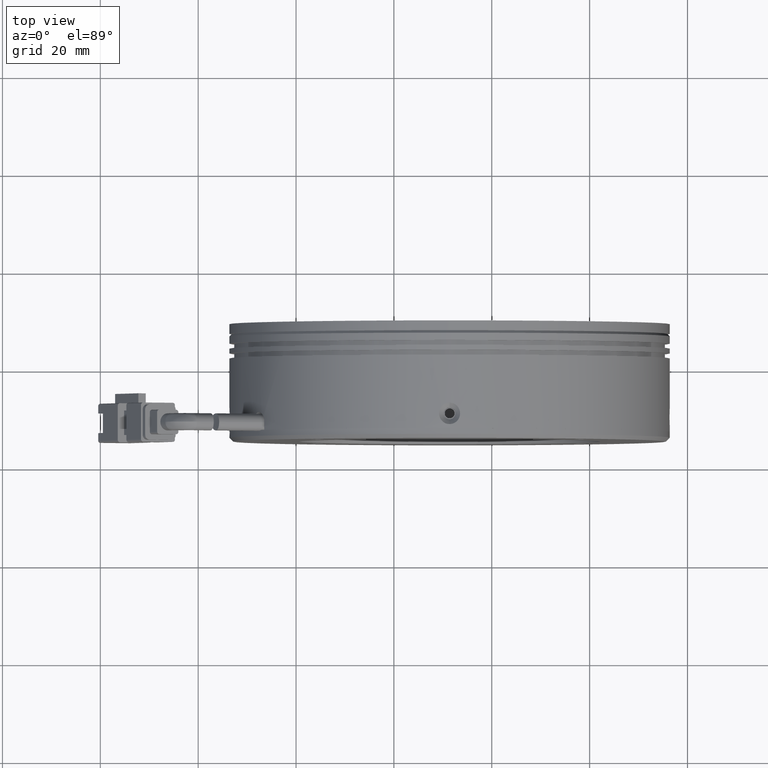
[diagram: clean part render]
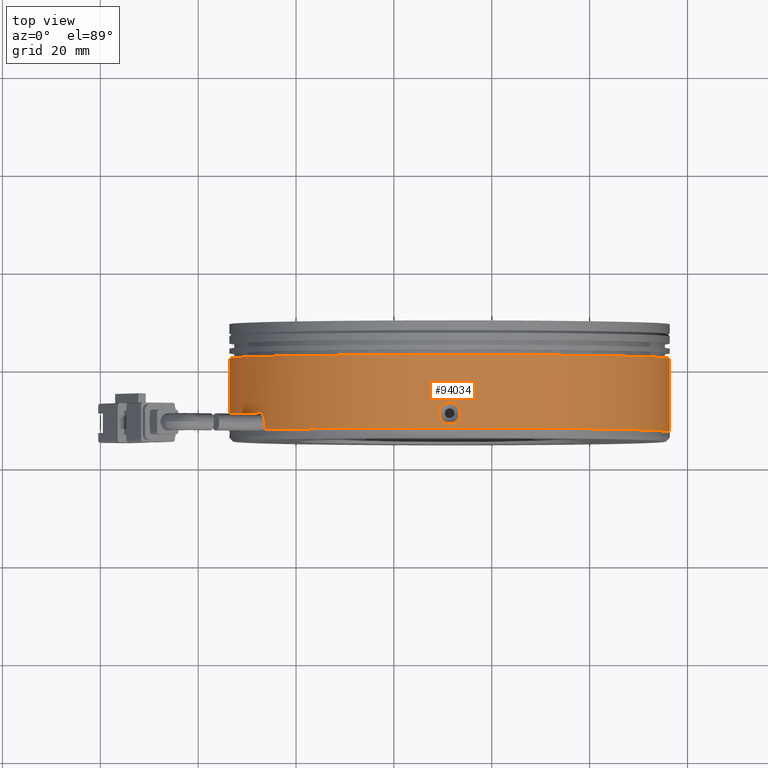
[diagram: same view with one face highlighted and labeled with its STEP entity id]
A machine part, top view. The second image highlights one B-rep face of the part: STEP entity #94034.
In plain terms, the highlighted cylindrical surface (partial cylindrical patch) has radius 45 mm, axis along (-0, 1, -0).
Its self-contained STEP definition (entity closure, byte-faithful):
#180 = CARTESIAN_POINT ( 'NONE',  ( -47.52586555121216300, 10.63076739277105400, 22.61883418976041700 ) ) ;
#323 = CARTESIAN_POINT ( 'NONE',  ( -53.62332752538289800, 7.773604335542724900, 0.1436688072208375800 ) ) ;
#595 = CARTESIAN_POINT ( 'NONE',  ( -46.52342250766837100, 9.074975093179070000, 24.26074119547914200 ) ) ;
#1868 = B_SPLINE_CURVE_WITH_KNOTS ( 'NONE', 3,
 ( #57676, #115708, #47952, #67444, #9419, #77114, #19250, #86794, #28998, #96580, #38647, #106371, #48366, #116125, #58063, #180, #67851, #9838, #77532, #19662, #87230, #29399, #96991, #39091, #106787, #48764, #116545, #58484, #595, #68273, #10266, #77938 ),
 .UNSPECIFIED., .F., .F.,
 ( 4, 2, 2, 2, 2, 2, 2, 2, 2, 2, 2, 2, 2, 2, 2, 4 ),
 ( 0.0000000000000000000, 0.0004141680494184936300, 0.0008283360988369872500, 0.001242504148255481000, 0.001656672197673974500, 0.002485008296510955000, 0.002899176345929454200, 0.003313344395347952900, 0.003727512444766451600, 0.004141680494184949900, 0.004555848543603449100, 0.004970016593021947400, 0.005384184642440447400, 0.005798352691858945700, 0.006212520741277444800, 0.006626688790695944000 ),
 .UNSPECIFIED. ) ;
#2113 = EDGE_CURVE ( 'NONE', #23534, #94598, #1868, .T. ) ;
#4279 = CARTESIAN_POINT ( 'NONE',  ( -8.059972934870741000, 12.10157494673396400, 44.99668873229931200 ) ) ;
#4303 = LINE ( 'NONE', #124534, #78423 ) ;
#4701 = CARTESIAN_POINT ( 'NONE',  ( -6.488352816655626600, 9.687964956977522100, 44.94933370211461500 ) ) ;
#5116 = CARTESIAN_POINT ( 'NONE',  ( -8.623327525382890700, 7.773604335542718700, 45.00000000000002100 ) ) ;
#5336 = CARTESIAN_POINT ( 'NONE',  ( 36.36371159320830800, 8.070075960840535200, 1.086324794343598700 ) ) ;
#5361 = CARTESIAN_POINT ( 'NONE',  ( -10.66445190200398100, 9.271885728209467100, 44.95371608337225000 ) ) ;
#5514 = CARTESIAN_POINT ( 'NONE',  ( -53.62332752538289800, 12.17360433553508700, 1.057097118173366800E-014 ) ) ;
#5766 = CARTESIAN_POINT ( 'NONE',  ( 36.33740140739007500, 11.07197063129076200, 1.882588811334083400 ) ) ;
#5794 = CARTESIAN_POINT ( 'NONE',  ( -9.585738901869113700, 11.94582116073213000, 44.98989713312852200 ) ) ;
#7671 = AXIS2_PLACEMENT_3D ( 'NONE', #115258, #57222, #124966 ) ;
#8440 = ORIENTED_EDGE ( 'NONE', *, *, #11055, .T. ) ;
#9159 = CARTESIAN_POINT ( 'NONE',  ( -53.61804927995928700, 12.05805315233403100, 0.7014563437106221500 ) ) ;
#9419 = CARTESIAN_POINT ( 'NONE',  ( -48.56507701671903700, 9.206578055496351000, 20.72823082719210700 ) ) ;
#9556 = CARTESIAN_POINT ( 'NONE',  ( -53.57517065982484900, 9.409703381289848100, 2.081469694106937500 ) ) ;
#9838 = CARTESIAN_POINT ( 'NONE',  ( -47.31719121714096600, 10.56405916631438700, 22.97397095435851700 ) ) ;
#10266 = CARTESIAN_POINT ( 'NONE',  ( -46.48588377028195100, 8.663585723335847500, 24.31926879250013600 ) ) ;
#10872 = FACE_BOUND ( 'NONE', #68489, .T. ) ;
#11055 = EDGE_CURVE ( 'NONE', #88007, #62998, #98500, .T. ) ;
#11061 = EDGE_CURVE ( 'NONE', #73994, #23534, #50077, .T. ) ;
#12731 = ORIENTED_EDGE ( 'NONE', *, *, #117310, .F. ) ;
#13977 = CARTESIAN_POINT ( 'NONE',  ( -7.660942420719791800, 11.94581845698619900, 44.98989710684172400 ) ) ;
#14223 = DIRECTION ( 'NONE',  ( -0.0000000000000000000, 1.000000000000000000, -0.0000000000000000000 ) ) ;
#14396 = CARTESIAN_POINT ( 'NONE',  ( -6.581535391594491600, 9.273676331088394100, 44.95368624019742000 ) ) ;
#14677 = CARTESIAN_POINT ( 'NONE',  ( -8.623327525382890700, 7.773604335542718700, 45.00000000000002100 ) ) ;
#15084 = CARTESIAN_POINT ( 'NONE',  ( 36.35403948381718200, 8.325926676454987100, 1.430432306789554600 ) ) ;
#15122 = CARTESIAN_POINT ( 'NONE',  ( -10.75857652733541900, 9.689885123036090100, 44.94932067194307000 ) ) ;
#15521 = CARTESIAN_POINT ( 'NONE',  ( 36.35407420739181800, 11.62234135784011500, 1.429410993699714600 ) ) ;
#15547 = CARTESIAN_POINT ( 'NONE',  ( -9.189443125921636500, 12.10081905160010000, 44.99665452443410600 ) ) ;
#17107 = CARTESIAN_POINT ( 'NONE',  ( -46.48588187067174700, 8.523604335538902200, 24.31927174999383500 ) ) ;
#18164 = ORIENTED_EDGE ( 'NONE', *, *, #87028, .T. ) ;
#18515 = CARTESIAN_POINT ( 'NONE',  ( -48.61571183505931500, 6.973604335538903200, 20.63029804019194900 ) ) ;
#18647 = VECTOR ( 'NONE', #14223, 1000.000000000000000 ) ;
#18959 = CARTESIAN_POINT ( 'NONE',  ( -53.61036664397417400, 11.87713271022997600, 1.086324794339401200 ) ) ;
#19250 = CARTESIAN_POINT ( 'NONE',  ( -48.48477387686834600, 9.583414573400855100, 20.88231702103256600 ) ) ;
#19390 = CARTESIAN_POINT ( 'NONE',  ( -53.58405645815616200, 8.875238039791101500, 1.882588811326614700 ) ) ;
#19662 = CARTESIAN_POINT ( 'NONE',  ( -47.11680841943959300, 10.42001503343518500, 23.30812067857121800 ) ) ;
#21667 = LINE ( 'NONE', #81884, #18647 ) ;
#22393 = B_SPLINE_CURVE_WITH_KNOTS ( 'NONE', 3,
 ( #42828, #81224, #62200, #4279, #71939, #13977, #81635, #23741, #91376, #33468, #101159, #43233, #110897, #52899, #120647, #62600, #4701, #72349, #14396, #82057, #24176, #91811, #33867, #101585, #43649, #111315, #53307, #121053, #63031, #5116 ),
 .UNSPECIFIED., .F., .F.,
 ( 4, 2, 2, 2, 2, 2, 2, 2, 2, 2, 2, 2, 2, 2, 4 ),
 ( 1.734723475976807100E-018, 0.0004257861064160340200, 0.0008515722128320663000, 0.001277358319248103400, 0.001703144425664140400, 0.002554716638496214900, 0.002980502744912249400, 0.003406288851328284300, 0.003832074957744318700, 0.004257861064160353200, 0.005109433276992423000, 0.005535219383408456100, 0.005961005489824489300, 0.006386791596240522400, 0.006812577702656554700 ),
 .UNSPECIFIED. ) ;
#23251 = VECTOR ( 'NONE', #50633, 1000.000000000000000 ) ;
#23534 = VERTEX_POINT ( 'NONE', #123644 ) ;
#23741 = CARTESIAN_POINT ( 'NONE',  ( -7.302223266193768900, 11.71451360040025400, 44.98075670498234000 ) ) ;
#24176 = CARTESIAN_POINT ( 'NONE',  ( -6.895857590895169600, 8.633905795971617900, 44.96727006731342200 ) ) ;
#24430 = CARTESIAN_POINT ( 'NONE',  ( -8.908376203405433500, 7.788219238862238200, 44.99931235604873300 ) ) ;
#24821 = CARTESIAN_POINT ( 'NONE',  ( 36.33737612640379000, 8.876873529306786600, 1.883146525718196300 ) ) ;
#24847 = CARTESIAN_POINT ( 'NONE',  ( -10.77202962060910900, 10.11544503738457700, 44.94867160781087300 ) ) ;
#25241 = CARTESIAN_POINT ( 'NONE',  ( 36.36364927896218500, 11.87556304089177800, 1.088790388727696800 ) ) ;
#25265 = CARTESIAN_POINT ( 'NONE',  ( -8.766996332603804700, 12.17360433553509400, 45.00000000000002800 ) ) ;
#28297 = CARTESIAN_POINT ( 'NONE',  ( -53.62332752538289800, 12.17360433553508700, 1.057097118173366800E-014 ) ) ;
#28718 = CARTESIAN_POINT ( 'NONE',  ( -53.60069453458314800, 11.62128199461645800, 1.430432306784017700 ) ) ;
#28998 = CARTESIAN_POINT ( 'NONE',  ( -48.37000347632785200, 9.920932722011510700, 21.10003437994229400 ) ) ;
#29134 = CARTESIAN_POINT ( 'NONE',  ( -53.60072925815778400, 8.324867313243848000, 1.429410993693936800 ) ) ;
#29399 = CARTESIAN_POINT ( 'NONE',  ( -46.93173925730071300, 10.20317269934878000, 23.61099089993897600 ) ) ;
#29404 = VERTEX_POINT ( 'NONE', #99585 ) ;
#29577 = ORIENTED_EDGE ( 'NONE', *, *, #97978, .F. ) ;
#29695 = CIRCLE ( 'NONE', #96402, 45.00000000000000700 ) ;
#30267 = ORIENTED_EDGE ( 'NONE', *, *, #45635, .T. ) ;
#33260 = VERTEX_POINT ( 'NONE', #49297 ) ;
#33468 = CARTESIAN_POINT ( 'NONE',  ( -6.897909732337798700, 11.31543146729494400, 44.96733983790665700 ) ) ;
#33799 = VERTEX_POINT ( 'NONE', #100643 ) ;
#33867 = CARTESIAN_POINT ( 'NONE',  ( -7.301841717478401600, 8.233099164097236400, 44.98074278805070500 ) ) ;
#34092 = CARTESIAN_POINT ( 'NONE',  ( 36.37667247461712300, 7.773604335534483500, 0.1436756704062735200 ) ) ;
#34119 = CARTESIAN_POINT ( 'NONE',  ( -9.324783869093527900, 7.889155518743739200, 44.99472175457638900 ) ) ;
#34499 = CARTESIAN_POINT ( 'NONE',  ( 36.32850273013742300, 9.410661051312031200, 2.081747786931598100 ) ) ;
#34531 = CARTESIAN_POINT ( 'NONE',  ( -10.70479721948997200, 10.53750528978793900, 44.95184313444195100 ) ) ;
#34905 = CARTESIAN_POINT ( 'NONE',  ( 36.37140072468191900, 12.05820216036170000, 0.7010773209099314700 ) ) ;
#34959 = CARTESIAN_POINT ( 'NONE',  ( -46.48588187067174700, 6.973604335538903200, 24.31927174999383800 ) ) ;
#35458 = DIRECTION ( 'NONE',  ( 0.0000000000000000000, -1.000000000000000000, 0.0000000000000000000 ) ) ;
#38279 = CARTESIAN_POINT ( 'NONE',  ( -8.623327525382890700, 6.973604335538903200, 1.057097118173366800E-014 ) ) ;
#38366 = CARTESIAN_POINT ( 'NONE',  ( -53.58403117716987700, 11.07033514176670200, 1.883146525710874600 ) ) ;
#38647 = CARTESIAN_POINT ( 'NONE',  ( -48.11778569940004500, 10.36742906659814500, 21.56972644323996100 ) ) ;
#38790 = CARTESIAN_POINT ( 'NONE',  ( -53.61030432972807300, 8.071645630193149400, 1.088790388723212200 ) ) ;
#39091 = CARTESIAN_POINT ( 'NONE',  ( -46.76948939058715400, 9.920386518002432700, 23.87216586767282300 ) ) ;
#41007 = CARTESIAN_POINT ( 'NONE',  ( -53.62332752538289800, 6.973604335538903200, 1.057097118173366800E-014 ) ) ;
#41485 = ORIENTED_EDGE ( 'NONE', *, *, #54436, .T. ) ;
#42828 = CARTESIAN_POINT ( 'NONE',  ( -8.623327525382890700, 12.17360433553508700, 45.00000000000002100 ) ) ;
#43233 = CARTESIAN_POINT ( 'NONE',  ( -6.582203148761800000, 10.67532294286833800, 44.95371608337226400 ) ) ;
#43649 = CARTESIAN_POINT ( 'NONE',  ( -7.660916148896670400, 8.001387510345676200, 44.98989713312852200 ) ) ;
#43914 = CARTESIAN_POINT ( 'NONE',  ( -9.709652319722332300, 8.070075960847768600, 44.98703911859131200 ) ) ;
#44312 = CARTESIAN_POINT ( 'NONE',  ( 36.32534686873297900, 9.830841455634853800, 2.148643807755291800 ) ) ;
#44336 = CARTESIAN_POINT ( 'NONE',  ( -10.50591633670963700, 11.07197063128670100, 44.96072893277325700 ) ) ;
#44714 = CARTESIAN_POINT ( 'NONE',  ( 36.37596953617409000, 12.15866189919627200, 0.2875225733698058600 ) ) ;
#44763 = VERTEX_POINT ( 'NONE', #5514 ) ;
#45635 = EDGE_CURVE ( 'NONE', #33260, #73994, #29695, .T. ) ;
#46776 = LINE ( 'NONE', #83257, #95148 ) ;
#47045 = ORIENTED_EDGE ( 'NONE', *, *, #11061, .T. ) ;
#47952 = CARTESIAN_POINT ( 'NONE',  ( -48.60931051439907700, 8.801220067653474600, 20.64272061329033600 ) ) ;
#48009 = DIRECTION ( 'NONE',  ( -1.000000000000000000, 0.0000000000000000000, 0.0000000000000000000 ) ) ;
#48105 = CARTESIAN_POINT ( 'NONE',  ( -53.57515778090357400, 10.53654761976347800, 2.081747786923475300 ) ) ;
#48366 = CARTESIAN_POINT ( 'NONE',  ( -47.86656886007198600, 10.56397073976971700, 22.02241199526636000 ) ) ;
#48500 = CARTESIAN_POINT ( 'NONE',  ( -53.61805577544774300, 7.889006510723914900, 0.7010773209069224300 ) ) ;
#48764 = CARTESIAN_POINT ( 'NONE',  ( -46.63952893542357000, 9.586064993795025300, 24.07850619191232500 ) ) ;
#48859 = LINE ( 'NONE', #85927, #123101 ) ;
#48935 = CARTESIAN_POINT ( 'NONE',  ( -53.62332752538289800, 21.97360433553890100, 1.057097118173366800E-014 ) ) ;
#49200 = VERTEX_POINT ( 'NONE', #112408 ) ;
#49297 = CARTESIAN_POINT ( 'NONE',  ( -53.62332752538289800, 6.973604335538903200, 1.057097118173366800E-014 ) ) ;
#50077 = LINE ( 'NONE', #55163, #95483 ) ;
#50498 = ORIENTED_EDGE ( 'NONE', *, *, #84651, .T. ) ;
#50633 = DIRECTION ( 'NONE',  ( -0.0000000000000000000, 1.000000000000000000, -0.0000000000000000000 ) ) ;
#52624 = ORIENTED_EDGE ( 'NONE', *, *, #102595, .T. ) ;
#52899 = CARTESIAN_POINT ( 'NONE',  ( -6.488078523430362800, 10.25732354804171600, 44.94932067194307000 ) ) ;
#53307 = CARTESIAN_POINT ( 'NONE',  ( -8.057211924844139600, 7.846389619477705900, 44.99665452443411300 ) ) ;
#53527 = CARTESIAN_POINT ( 'NONE',  ( 36.37336120691640000, 7.845633724335820100, 0.5633545905143042500 ) ) ;
#53558 = CARTESIAN_POINT ( 'NONE',  ( -10.05375983216697100, 8.325926676461287800, 44.97736700920025800 ) ) ;
#53949 = CARTESIAN_POINT ( 'NONE',  ( 36.32600617673132600, 10.25924371410124900, 2.134974708735501100 ) ) ;
#53980 = CARTESIAN_POINT ( 'NONE',  ( -10.05273851907695200, 11.62234135783396900, 44.97740173277488700 ) ) ;
#54372 = CARTESIAN_POINT ( 'NONE',  ( 36.37667247461711600, 12.17360433554327100, 2.489116094179469700E-013 ) ) ;
#54436 = EDGE_CURVE ( 'NONE', #29404, #33799, #21667, .T. ) ;
#54868 = CARTESIAN_POINT ( 'NONE',  ( -8.623327525382890700, 7.773604335542718700, 45.00000000000002100 ) ) ;
#55163 = CARTESIAN_POINT ( 'NONE',  ( -48.61571183505932200, 6.973604335538903200, 20.63029804019194900 ) ) ;
#55581 = CARTESIAN_POINT ( 'NONE',  ( -8.623327525382890700, 6.973604335538903200, 1.057097118173366800E-014 ) ) ;
#57222 = DIRECTION ( 'NONE',  ( 0.0000000000000000000, -1.000000000000000000, 0.0000000000000000000 ) ) ;
#57676 = CARTESIAN_POINT ( 'NONE',  ( -48.61571183505931500, 8.523604335538905700, 20.63029804019195600 ) ) ;
#57805 = CARTESIAN_POINT ( 'NONE',  ( -53.57200191949915100, 10.11636721544224600, 2.148643807746887900 ) ) ;
#58063 = CARTESIAN_POINT ( 'NONE',  ( -47.66415282424452500, 10.63062943163898800, 22.37930036749881400 ) ) ;
#58201 = CARTESIAN_POINT ( 'NONE',  ( -53.62262458693988500, 7.788546771889695500, 0.2875225733683894900 ) ) ;
#58321 = AXIS2_PLACEMENT_3D ( 'NONE', #55581, #123316, #65344 ) ;
#58484 = CARTESIAN_POINT ( 'NONE',  ( -46.54541290970392700, 9.206781166141931600, 24.22639789336174600 ) ) ;
#62200 = CARTESIAN_POINT ( 'NONE',  ( -8.338278847360346200, 12.15898943221556600, 44.99931235604874000 ) ) ;
#62600 = CARTESIAN_POINT ( 'NONE',  ( -6.474625430156672600, 9.831763633693231700, 44.94867160781088000 ) ) ;
#62998 = VERTEX_POINT ( 'NONE', #98140 ) ;
#63031 = CARTESIAN_POINT ( 'NONE',  ( -8.479644991464287100, 7.773604335542708900, 45.00000000000002800 ) ) ;
#63267 = CARTESIAN_POINT ( 'NONE',  ( 36.36656958145873400, 8.001390214084116400, 0.9623851046667836200 ) ) ;
#63291 = CARTESIAN_POINT ( 'NONE',  ( -10.50647405109386600, 8.876873529311037500, 44.96070365178698600 ) ) ;
#63687 = CARTESIAN_POINT ( 'NONE',  ( 36.33035871481416000, 10.67353233999194900, 2.041792133796319900 ) ) ;
#63715 = CARTESIAN_POINT ( 'NONE',  ( -9.712117914106219300, 11.87556304088467800, 44.98697680434519700 ) ) ;
#64535 = DIRECTION ( 'NONE',  ( -1.000000000000000000, 0.0000000000000000000, 0.0000000000000000000 ) ) ;
#65344 = DIRECTION ( 'NONE',  ( -1.000000000000000000, 0.0000000000000000000, 0.0000000000000000000 ) ) ;
#67170 = CARTESIAN_POINT ( 'NONE',  ( -53.62001625768218800, 12.10157494673392800, 0.5633545905121381000 ) ) ;
#67444 = CARTESIAN_POINT ( 'NONE',  ( -48.58415678345259200, 9.072005393394945800, 20.69137199229797000 ) ) ;
#67582 = CARTESIAN_POINT ( 'NONE',  ( -53.57266122749749800, 9.687964956977491900, 2.134974708727119400 ) ) ;
#67851 = CARTESIAN_POINT ( 'NONE',  ( -47.45509811244421200, 10.61720603190169000, 22.74009722674689000 ) ) ;
#67989 = CARTESIAN_POINT ( 'NONE',  ( -53.62332752538289800, 7.773604335542722200, -7.175110677120584500E-014 ) ) ;
#68273 = CARTESIAN_POINT ( 'NONE',  ( -46.49360950722893900, 8.803697521006126800, 24.30725212021603800 ) ) ;
#68489 = EDGE_LOOP ( 'NONE', ( #110261, #52624 ) ) ;
#71939 = CARTESIAN_POINT ( 'NONE',  ( -7.921871181672250900, 12.05805315233406800, 44.99472175457638900 ) ) ;
#72349 = CARTESIAN_POINT ( 'NONE',  ( -6.541857831275807600, 9.409703381289865800, 44.95184313444195100 ) ) ;
#72997 = CARTESIAN_POINT ( 'NONE',  ( 36.35742917959929300, 8.232695070670910600, 1.321104259194183100 ) ) ;
#73022 = CARTESIAN_POINT ( 'NONE',  ( -10.70507531230649600, 9.410661051314265900, 44.95183025552069000 ) ) ;
#73396 = CARTESIAN_POINT ( 'NONE',  ( 36.34394254193026800, 11.31330287511116900, 1.727469934494472600 ) ) ;
#73427 = CARTESIAN_POINT ( 'NONE',  ( -9.324404846289910500, 12.05820216035390800, 44.99472825006485300 ) ) ;
#73818 = DIRECTION ( 'NONE',  ( -0.0000000000000000000, 1.000000000000000000, -0.0000000000000000000 ) ) ;
#73994 = VERTEX_POINT ( 'NONE', #18515 ) ;
#76839 = CARTESIAN_POINT ( 'NONE',  ( -53.61322463222460000, 11.94581845698615100, 0.9623851046630682600 ) ) ;
#77114 = CARTESIAN_POINT ( 'NONE',  ( -48.51530304119831500, 9.462181123268450700, 20.82386119574351500 ) ) ;
#77241 = CARTESIAN_POINT ( 'NONE',  ( -53.57701376558029000, 9.273676331088371000, 2.041792133788261900 ) ) ;
#77532 = CARTESIAN_POINT ( 'NONE',  ( -47.24948897088839300, 10.52470785249345300, 23.08757702518154500 ) ) ;
#77938 = CARTESIAN_POINT ( 'NONE',  ( -46.48588187067174700, 8.523604335538902200, 24.31927174999383500 ) ) ;
#78423 = VECTOR ( 'NONE', #85913, 1000.000000000000000 ) ;
#80247 = EDGE_CURVE ( 'NONE', #94598, #88007, #46776, .T. ) ;
#80704 = EDGE_CURVE ( 'NONE', #109582, #29404, #110779, .T. ) ;
#81224 = CARTESIAN_POINT ( 'NONE',  ( -8.479651854977062100, 12.17360433553509200, 45.00000000000002800 ) ) ;
#81635 = CARTESIAN_POINT ( 'NONE',  ( -7.537002731043447300, 11.87713271023003600, 44.98703911859131200 ) ) ;
#81855 = CARTESIAN_POINT ( 'NONE',  ( 36.37667247461711600, 7.773604335534530600, 1.608188177789675600E-014 ) ) ;
#81884 = CARTESIAN_POINT ( 'NONE',  ( 36.37667247461711600, 6.973604335538903200, 1.608188177789675600E-014 ) ) ;
#82057 = CARTESIAN_POINT ( 'NONE',  ( -6.740738714056140800, 8.875238039791097900, 44.96072893277327200 ) ) ;
#82702 = CARTESIAN_POINT ( 'NONE',  ( 36.34401231252348900, 8.631777203777696500, 1.725417793051698100 ) ) ;
#82725 = CARTESIAN_POINT ( 'NONE',  ( -10.77197133312991500, 9.830841455635516400, 44.94867439411628100 ) ) ;
#83104 = CARTESIAN_POINT ( 'NONE',  ( 36.35741526266765100, 11.71410950698705900, 1.321485807909735400 ) ) ;
#83133 = CARTESIAN_POINT ( 'NONE',  ( -8.910850098751369700, 12.15866189918813100, 44.99929706155701600 ) ) ;
#83257 = CARTESIAN_POINT ( 'NONE',  ( -46.48588187067174700, 6.973604335538903200, 24.31927174999383800 ) ) ;
#84651 = EDGE_CURVE ( 'NONE', #44763, #106124, #91261, .T. ) ;
#85697 = CARTESIAN_POINT ( 'NONE',  ( -53.62332752538290500, 12.17360433553508700, 0.1436756704058295100 ) ) ;
#85913 = DIRECTION ( 'NONE',  ( -0.0000000000000000000, 1.000000000000000000, -0.0000000000000000000 ) ) ;
#85927 = CARTESIAN_POINT ( 'NONE',  ( -53.62332752538289800, 6.973604335538903200, 1.057097118173366800E-014 ) ) ;
#86519 = CARTESIAN_POINT ( 'NONE',  ( -53.60408423036521700, 11.71451360040019200, 1.321104259189063600 ) ) ;
#86794 = CARTESIAN_POINT ( 'NONE',  ( -48.41223003128888500, 9.812838408305284000, 21.02021186322266300 ) ) ;
#86946 = CARTESIAN_POINT ( 'NONE',  ( -53.59059759269629800, 8.633905795971623200, 1.727469934487586800 ) ) ;
#87028 = EDGE_CURVE ( 'NONE', #33799, #99509, #105999, .T. ) ;
#87230 = CARTESIAN_POINT ( 'NONE',  ( -47.05225851073662800, 10.35465811422459700, 23.41432390700316900 ) ) ;
#88007 = VERTEX_POINT ( 'NONE', #34959 ) ;
#91261 = B_SPLINE_CURVE_WITH_KNOTS ( 'NONE', 3,
 ( #28297, #85697, #125145, #67170, #9159, #76839, #18959, #86519, #28718, #96301, #38366, #106105, #48105, #115852, #57805, #125562, #67582, #9556, #77241, #19390, #86946, #29134, #96710, #38790, #106517, #48500, #116271, #58201, #323, #67989 ),
 .UNSPECIFIED., .F., .F.,
 ( 4, 2, 2, 2, 2, 2, 2, 2, 2, 2, 2, 2, 2, 2, 4 ),
 ( 0.006812577702656749000, 0.007238343469868680800, 0.007664109237080613500, 0.008089875004292545300, 0.008515640771504478000, 0.009367172305928341700, 0.009792938073140274400, 0.01021870384035220700, 0.01064446960756414200, 0.01107023537477607200, 0.01192176690919994500, 0.01234753267641188100, 0.01277329844362381700, 0.01319906421083575200, 0.01362482997804768800 ),
 .UNSPECIFIED. ) ;
#91376 = CARTESIAN_POINT ( 'NONE',  ( -7.192895218598810200, 11.62128199461652200, 44.97736700920025800 ) ) ;
#91601 = CARTESIAN_POINT ( 'NONE',  ( 36.37667247461711600, 7.773604335534530600, 1.608188177789675600E-014 ) ) ;
#91811 = CARTESIAN_POINT ( 'NONE',  ( -7.193916531688829600, 8.324867313243839100, 44.97740173277489400 ) ) ;
#92054 = CARTESIAN_POINT ( 'NONE',  ( -9.186682115895038700, 7.845633724343839400, 44.99668873229931200 ) ) ;
#92446 = CARTESIAN_POINT ( 'NONE',  ( 36.33038855798901100, 9.271885728206706600, 2.041124376628928900 ) ) ;
#92478 = CARTESIAN_POINT ( 'NONE',  ( -10.75830223411015400, 10.25924371410028600, 44.94933370211461500 ) ) ;
#92871 = CARTESIAN_POINT ( 'NONE',  ( 36.36656960774553200, 11.94582116073950600, 0.9624113764901115500 ) ) ;
#92909 = CARTESIAN_POINT ( 'NONE',  ( -8.623327525382890700, 12.17360433553508700, 45.00000000000002100 ) ) ;
#93848 = VERTEX_POINT ( 'NONE', #54868 ) ;
#94034 = ADVANCED_FACE ( 'NONE', ( #10872, #113893 ), #101727, .T. ) ;
#94598 = VERTEX_POINT ( 'NONE', #17107 ) ;
#95148 = VECTOR ( 'NONE', #35458, 1000.000000000000000 ) ;
#95483 = VECTOR ( 'NONE', #103854, 1000.000000000000000 ) ;
#96301 = CARTESIAN_POINT ( 'NONE',  ( -53.59066736328955500, 11.31543146729487500, 1.725417793045003200 ) ) ;
#96402 = AXIS2_PLACEMENT_3D ( 'NONE', #38279, #106011, #48009 ) ;
#96580 = CARTESIAN_POINT ( 'NONE',  ( -48.23089225670880600, 10.21143279297812100, 21.36070260994521800 ) ) ;
#96710 = CARTESIAN_POINT ( 'NONE',  ( -53.60407031343359600, 8.233099164097254200, 1.321485807904364100 ) ) ;
#96991 = CARTESIAN_POINT ( 'NONE',  ( -46.87504331763062000, 10.11652803674569000, 23.70266244979985600 ) ) ;
#97978 = EDGE_CURVE ( 'NONE', #44763, #99509, #48859, .T. ) ;
#98140 = CARTESIAN_POINT ( 'NONE',  ( 36.37667247461711600, 6.973604335538903200, 1.608188177789675600E-014 ) ) ;
#98500 = CIRCLE ( 'NONE', #58321, 45.00000000000000700 ) ;
#99469 = ORIENTED_EDGE ( 'NONE', *, *, #80704, .T. ) ;
#99509 = VERTEX_POINT ( 'NONE', #48935 ) ;
#99585 = CARTESIAN_POINT ( 'NONE',  ( 36.37667247461711600, 12.17360433554327100, 2.489116094179469700E-013 ) ) ;
#100420 = LINE ( 'NONE', #41007, #23251 ) ;
#100643 = CARTESIAN_POINT ( 'NONE',  ( 36.37667247461711600, 21.97360433553890100, 1.608188177789675600E-014 ) ) ;
#101037 = ORIENTED_EDGE ( 'NONE', *, *, #80247, .T. ) ;
#101159 = CARTESIAN_POINT ( 'NONE',  ( -6.740180999671914600, 11.07033514176676500, 44.96070365178698600 ) ) ;
#101561 = CARTESIAN_POINT ( 'NONE',  ( -53.62332752538289800, 7.773604335542722200, -7.175110677120584500E-014 ) ) ;
#101585 = CARTESIAN_POINT ( 'NONE',  ( -7.534537136659563000, 8.071645630193131600, 44.98697680434520400 ) ) ;
#101646 = B_SPLINE_CURVE_WITH_KNOTS ( 'NONE', 3,
 ( #14677, #110737, #24430, #92054, #34119, #101838, #43914, #111566, #53558, #121308, #63291, #5361, #73022, #15122, #82725, #24847, #92478, #34531, #102251, #44336, #112001, #53980, #121710, #63715, #5794, #73427, #15547, #83133, #25265, #92909 ),
 .UNSPECIFIED., .F., .F.,
 ( 4, 2, 2, 2, 2, 2, 2, 2, 2, 2, 2, 2, 2, 2, 4 ),
 ( 0.006812577702656554700, 0.007238343469868505600, 0.007664109237080456500, 0.008089875004292408300, 0.008515640771504358300, 0.009367172305928261900, 0.009792938073140208500, 0.01021870384035215700, 0.01064446960756410500, 0.01107023537477605200, 0.01192176690919994700, 0.01234753267641189300, 0.01277329844362383600, 0.01319906421083578100, 0.01362482997804772600 ),
 .UNSPECIFIED. ) ;
#101727 = CYLINDRICAL_SURFACE ( 'NONE', #109022, 45.00000000000000700 ) ;
#101838 = CARTESIAN_POINT ( 'NONE',  ( -9.585712630045991400, 8.001390214091607300, 44.98989710684171000 ) ) ;
#102228 = CARTESIAN_POINT ( 'NONE',  ( 36.32599314655977500, 9.689885123034903500, 2.135249001960736000 ) ) ;
#102251 = CARTESIAN_POINT ( 'NONE',  ( -10.66511965917129100, 10.67353233998941400, 44.95368624019741300 ) ) ;
#102274 = EDGE_CURVE ( 'NONE', #62998, #109582, #4303, .T. ) ;
#102595 = EDGE_CURVE ( 'NONE', #49200, #93848, #22393, .T. ) ;
#102635 = ORIENTED_EDGE ( 'NONE', *, *, #102274, .T. ) ;
#102659 = CARTESIAN_POINT ( 'NONE',  ( 36.37332699905115900, 12.10081905160804200, 0.5661156005411434000 ) ) ;
#103854 = DIRECTION ( 'NONE',  ( -0.0000000000000000000, 1.000000000000000000, -0.0000000000000000000 ) ) ;
#105999 = CIRCLE ( 'NONE', #7671, 45.00000000000000700 ) ;
#106011 = DIRECTION ( 'NONE',  ( -0.0000000000000000000, 1.000000000000000000, -0.0000000000000000000 ) ) ;
#106105 = CARTESIAN_POINT ( 'NONE',  ( -53.57704360875513300, 10.67532294286827700, 2.041124376620972100 ) ) ;
#106124 = VERTEX_POINT ( 'NONE', #101561 ) ;
#106371 = CARTESIAN_POINT ( 'NONE',  ( -47.93211504806184600, 10.52376713598239600, 21.90514904812857500 ) ) ;
#106517 = CARTESIAN_POINT ( 'NONE',  ( -53.61322465851140600, 8.001387510345692200, 0.9624113764861133000 ) ) ;
#106787 = CARTESIAN_POINT ( 'NONE',  ( -46.72240373866015500, 9.814180163300738600, 23.94715895002225600 ) ) ;
#109022 = AXIS2_PLACEMENT_3D ( 'NONE', #122111, #73818, #64535 ) ;
#109408 = EDGE_LOOP ( 'NONE', ( #8440, #102635, #99469, #41485, #18164, #29577, #50498, #12731, #30267, #47045, #113094, #101037 ) ) ;
#109582 = VERTEX_POINT ( 'NONE', #81855 ) ;
#110261 = ORIENTED_EDGE ( 'NONE', *, *, #115765, .T. ) ;
#110737 = CARTESIAN_POINT ( 'NONE',  ( -8.767003195788722900, 7.773604335542707100, 45.00000000000002800 ) ) ;
#110779 = B_SPLINE_CURVE_WITH_KNOTS ( 'NONE', 3,
 ( #91601, #34092, #111544, #53527, #121275, #63267, #5336, #72997, #15084, #82702, #24821, #92446, #34499, #102228, #44312, #111966, #53949, #121681, #63687, #5766, #73396, #15521, #83104, #25241, #92871, #34905, #102659, #44714, #112391, #54372 ),
 .UNSPECIFIED., .F., .F.,
 ( 4, 2, 2, 2, 2, 2, 2, 2, 2, 2, 2, 2, 2, 2, 4 ),
 ( 0.006812577702680942300, 0.007238343469894494400, 0.007664109237108046400, 0.008089875004321598500, 0.008515640771535151400, 0.009367172305962255500, 0.009792938073175810200, 0.01021870384038936500, 0.01064446960760292000, 0.01107023537481647400, 0.01192176690924358400, 0.01234753267645713800, 0.01277329844367069300, 0.01319906421088424900, 0.01362482997809780400 ),
 .UNSPECIFIED. ) ;
#110897 = CARTESIAN_POINT ( 'NONE',  ( -6.541579738459282600, 10.53654761976353900, 44.95183025552069700 ) ) ;
#111315 = CARTESIAN_POINT ( 'NONE',  ( -7.922250204475870900, 7.889006510723896200, 44.99472825006487400 ) ) ;
#111544 = CARTESIAN_POINT ( 'NONE',  ( 36.37598483066583600, 7.788219238854049200, 0.2850486780236358700 ) ) ;
#111566 = CARTESIAN_POINT ( 'NONE',  ( -9.944431784572012500, 8.232695070677550600, 44.98075670498234800 ) ) ;
#111966 = CARTESIAN_POINT ( 'NONE',  ( 36.32534408242757700, 10.11544503738500300, 2.148702095234499100 ) ) ;
#112001 = CARTESIAN_POINT ( 'NONE',  ( -10.35079745987060900, 11.31330287510619400, 44.96727006731341400 ) ) ;
#112391 = CARTESIAN_POINT ( 'NONE',  ( 36.37667247461711600, 12.17360433554328500, 0.1436688072217061400 ) ) ;
#112408 = CARTESIAN_POINT ( 'NONE',  ( -8.623327525382890700, 12.17360433553508700, 45.00000000000002100 ) ) ;
#113094 = ORIENTED_EDGE ( 'NONE', *, *, #2113, .T. ) ;
#113893 = FACE_OUTER_BOUND ( 'NONE', #109408, .T. ) ;
#115258 = CARTESIAN_POINT ( 'NONE',  ( -8.623327525382890700, 21.97360433553890100, 1.057097118173366800E-014 ) ) ;
#115708 = CARTESIAN_POINT ( 'NONE',  ( -48.61571012626155400, 8.663581518364177100, 20.63030135274209400 ) ) ;
#115765 = EDGE_CURVE ( 'NONE', #93848, #49200, #101646, .T. ) ;
#115852 = CARTESIAN_POINT ( 'NONE',  ( -53.57264819732593300, 10.25732354804166000, 2.135249001952388000 ) ) ;
#116125 = CARTESIAN_POINT ( 'NONE',  ( -47.73228773608233400, 10.61735782648494800, 22.26000565543126400 ) ) ;
#116271 = CARTESIAN_POINT ( 'NONE',  ( -53.61998204981698300, 7.846389619477724500, 0.5661156005386504000 ) ) ;
#116545 = CARTESIAN_POINT ( 'NONE',  ( -46.60343487885256100, 9.462698317998786000, 24.13533426746221600 ) ) ;
#117310 = EDGE_CURVE ( 'NONE', #33260, #106124, #100420, .T. ) ;
#120647 = CARTESIAN_POINT ( 'NONE',  ( -6.474683717635864300, 10.11636721544229000, 44.94867439411627400 ) ) ;
#121053 = CARTESIAN_POINT ( 'NONE',  ( -8.335804952014417100, 7.788546771889680400, 44.99929706155701600 ) ) ;
#121275 = CARTESIAN_POINT ( 'NONE',  ( 36.37139422919346300, 7.889155518735854900, 0.7014563437133257700 ) ) ;
#121308 = CARTESIAN_POINT ( 'NONE',  ( -10.34874531842797700, 8.631777203782860400, 44.96733983790666400 ) ) ;
#121681 = CARTESIAN_POINT ( 'NONE',  ( 36.32851560905867000, 10.53750528978994800, 2.081469694115134500 ) ) ;
#121710 = CARTESIAN_POINT ( 'NONE',  ( -9.944813333287378000, 11.71410950698056700, 44.98074278805069800 ) ) ;
#122111 = CARTESIAN_POINT ( 'NONE',  ( -8.623327525382890700, 6.973604335538903200, 1.057097118173366800E-014 ) ) ;
#123101 = VECTOR ( 'NONE', #124955, 1000.000000000000000 ) ;
#123316 = DIRECTION ( 'NONE',  ( -0.0000000000000000000, 1.000000000000000000, -0.0000000000000000000 ) ) ;
#123644 = CARTESIAN_POINT ( 'NONE',  ( -48.61571183505931500, 8.523604335538905700, 20.63029804019195600 ) ) ;
#124534 = CARTESIAN_POINT ( 'NONE',  ( 36.37667247461711600, 6.973604335538903200, 1.608188177789675600E-014 ) ) ;
#124955 = DIRECTION ( 'NONE',  ( -0.0000000000000000000, 1.000000000000000000, -0.0000000000000000000 ) ) ;
#124966 = DIRECTION ( 'NONE',  ( -1.000000000000000000, 0.0000000000000000000, 0.0000000000000000000 ) ) ;
#125145 = CARTESIAN_POINT ( 'NONE',  ( -53.62263988143161000, 12.15898943221554700, 0.2850486780225427500 ) ) ;
#125562 = CARTESIAN_POINT ( 'NONE',  ( -53.57199913319374900, 9.831763633693192600, 2.148702095226074200 ) ) ;